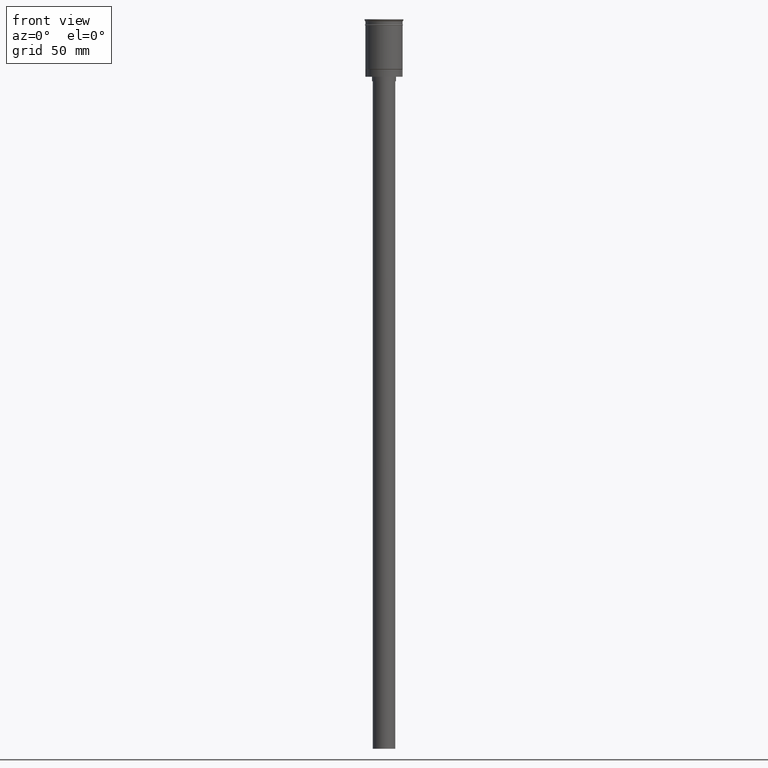
[diagram: clean part render]
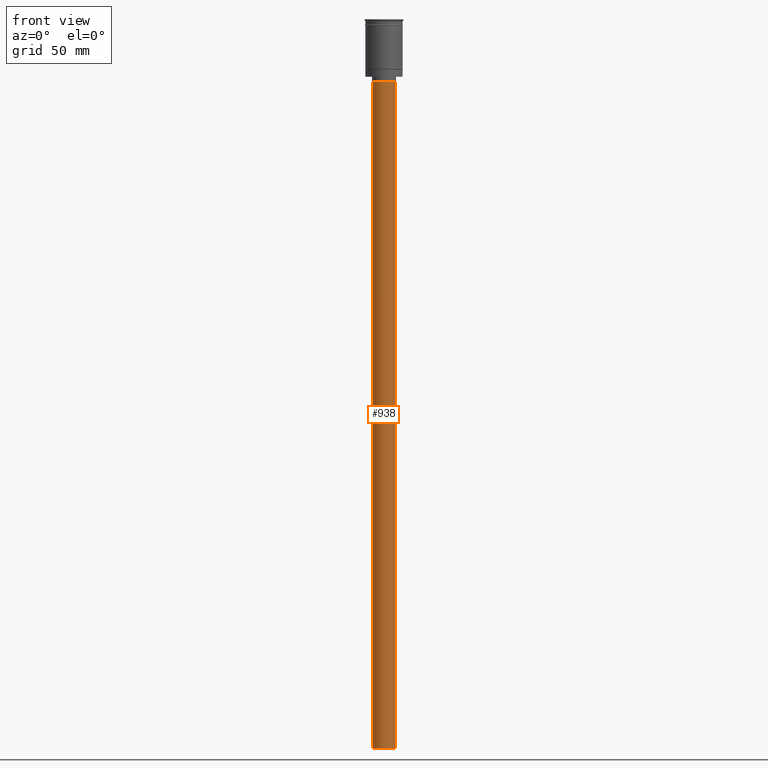
[diagram: same view with one face highlighted and labeled with its STEP entity id]
A machine part, front view. The second image highlights one B-rep face of the part: STEP entity #938.
In plain terms, the highlighted cylindrical surface (edge-blend (fillet) strip) has radius 7.5 mm, axis along (-0, -0, 1).
Its self-contained STEP definition (entity closure, byte-faithful):
#17 = CARTESIAN_POINT ( 'NONE',  ( 7.500000000000000000, 0.000000000000000000, -41.50000000000000000 ) ) ;
#23 = DIRECTION ( 'NONE',  ( 0.000000000000000000, 0.000000000000000000, -1.000000000000000000 ) ) ;
#137 = VECTOR ( 'NONE', #257, 1000.000000000000000 ) ;
#157 = DIRECTION ( 'NONE',  ( -1.000000000000000000, 0.000000000000000000, 0.000000000000000000 ) ) ;
#212 = EDGE_CURVE ( 'NONE', #739, #592, #1526, .T. ) ;
#241 = LINE ( 'NONE', #1230, #137 ) ;
#257 = DIRECTION ( 'NONE',  ( -0.000000000000000000, -0.000000000000000000, 1.000000000000000000 ) ) ;
#295 = AXIS2_PLACEMENT_3D ( 'NONE', #1559, #820, #1304 ) ;
#296 = CARTESIAN_POINT ( 'NONE',  ( 0.000000000000000000, 0.000000000000000000, -41.50000000000000000 ) ) ;
#340 = CYLINDRICAL_SURFACE ( 'NONE', #295, 7.500000000000000000 ) ;
#356 = EDGE_CURVE ( 'NONE', #1411, #739, #694, .T. ) ;
#386 = CARTESIAN_POINT ( 'NONE',  ( 0.000000000000000000, 0.000000000000000000, -488.5000000000000000 ) ) ;
#416 = FACE_OUTER_BOUND ( 'NONE', #585, .T. ) ;
#536 = DIRECTION ( 'NONE',  ( 0.000000000000000000, 0.000000000000000000, -1.000000000000000000 ) ) ;
#539 = DIRECTION ( 'NONE',  ( -0.000000000000000000, -0.000000000000000000, 1.000000000000000000 ) ) ;
#573 = ORIENTED_EDGE ( 'NONE', *, *, #212, .T. ) ;
#585 = EDGE_LOOP ( 'NONE', ( #1165, #723, #858, #573 ) ) ;
#592 = VERTEX_POINT ( 'NONE', #1595 ) ;
#614 = DIRECTION ( 'NONE',  ( -1.000000000000000000, 0.000000000000000000, 0.000000000000000000 ) ) ;
#629 = CIRCLE ( 'NONE', #885, 7.500000000000000000 ) ;
#641 = CARTESIAN_POINT ( 'NONE',  ( 7.500000000000000000, 0.000000000000000000, -488.5000000000000000 ) ) ;
#694 = LINE ( 'NONE', #706, #1374 ) ;
#706 = CARTESIAN_POINT ( 'NONE',  ( 7.500000000000000000, 0.000000000000000000, -488.5000000000000000 ) ) ;
#716 = EDGE_CURVE ( 'NONE', #1411, #1306, #629, .T. ) ;
#723 = ORIENTED_EDGE ( 'NONE', *, *, #716, .F. ) ;
#730 = AXIS2_PLACEMENT_3D ( 'NONE', #296, #536, #157 ) ;
#739 = VERTEX_POINT ( 'NONE', #17 ) ;
#820 = DIRECTION ( 'NONE',  ( -0.000000000000000000, -0.000000000000000000, 1.000000000000000000 ) ) ;
#858 = ORIENTED_EDGE ( 'NONE', *, *, #356, .T. ) ;
#885 = AXIS2_PLACEMENT_3D ( 'NONE', #386, #23, #614 ) ;
#888 = CARTESIAN_POINT ( 'NONE',  ( -7.500000000000000000, 9.184850993605147944E-16, -488.5000000000000000 ) ) ;
#938 = ADVANCED_FACE ( 'NONE', ( #416 ), #340, .T. ) ;
#1165 = ORIENTED_EDGE ( 'NONE', *, *, #1239, .F. ) ;
#1230 = CARTESIAN_POINT ( 'NONE',  ( -7.500000000000000000, 9.184850993605147944E-16, -488.5000000000000000 ) ) ;
#1239 = EDGE_CURVE ( 'NONE', #1306, #592, #241, .T. ) ;
#1304 = DIRECTION ( 'NONE',  ( 1.000000000000000000, 0.000000000000000000, 0.000000000000000000 ) ) ;
#1306 = VERTEX_POINT ( 'NONE', #888 ) ;
#1374 = VECTOR ( 'NONE', #539, 1000.000000000000000 ) ;
#1411 = VERTEX_POINT ( 'NONE', #641 ) ;
#1526 = CIRCLE ( 'NONE', #730, 7.500000000000000000 ) ;
#1559 = CARTESIAN_POINT ( 'NONE',  ( 0.000000000000000000, 0.000000000000000000, -488.5000000000000000 ) ) ;
#1595 = CARTESIAN_POINT ( 'NONE',  ( -7.500000000000000000, 9.184850993605147944E-16, -41.50000000000000000 ) ) ;